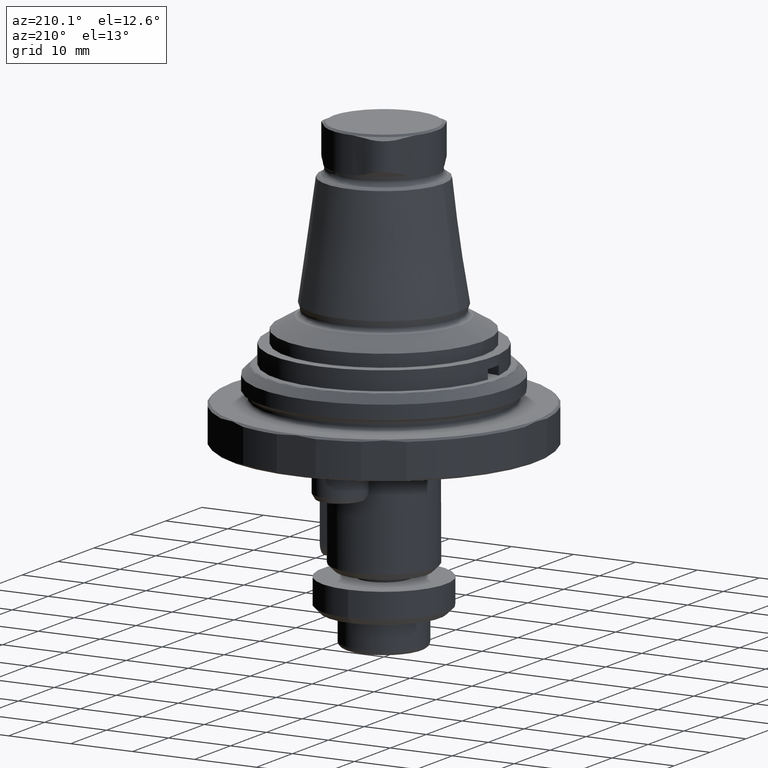
[diagram: clean part render]
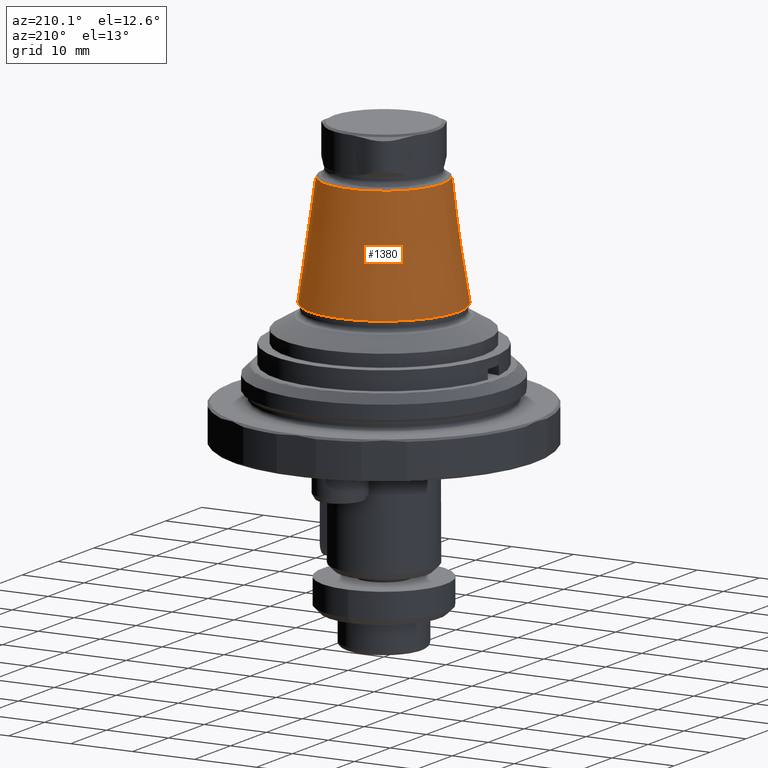
[diagram: same view with one face highlighted and labeled with its STEP entity id]
A machine part, auxiliary view. The second image highlights one B-rep face of the part: STEP entity #1380.
In plain terms, the highlighted conical surface has half-angle 7.95 deg.
Its self-contained STEP definition (entity closure, byte-faithful):
#226=CONICAL_SURFACE('',#1532,12.0389042028962,0.138753675533549);
#411=ORIENTED_EDGE('',*,*,#688,.T.);
#412=ORIENTED_EDGE('',*,*,#689,.F.);
#688=EDGE_CURVE('',#847,#847,#956,.T.);
#689=EDGE_CURVE('',#848,#848,#957,.T.);
#847=VERTEX_POINT('',#2342);
#848=VERTEX_POINT('',#2345);
#956=CIRCLE('',#1531,9.52044245468562);
#957=CIRCLE('',#1533,12.0389042028962);
#1078=EDGE_LOOP('',(#411));
#1079=EDGE_LOOP('',(#412));
#1224=FACE_BOUND('',#1078,.T.);
#1225=FACE_BOUND('',#1079,.T.);
#1380=ADVANCED_FACE('',(#1224,#1225),#226,.T.);
#1531=AXIS2_PLACEMENT_3D('',#2341,#1828,#1829);
#1532=AXIS2_PLACEMENT_3D('',#2343,#1830,#1831);
#1533=AXIS2_PLACEMENT_3D('',#2344,#1832,#1833);
#1828=DIRECTION('',(-5.55111512312578E-17,0.,-1.));
#1829=DIRECTION('',(-1.,6.12303176911189E-17,5.55111512312578E-17));
#1830=DIRECTION('',(-5.55111512312578E-17,0.,-1.));
#1831=DIRECTION('',(-1.,6.12303176911189E-17,5.55111512312578E-17));
#1832=DIRECTION('',(-5.55111512312578E-17,0.,-1.));
#1833=DIRECTION('',(-1.,6.12303176911189E-17,5.55111512312578E-17));
#2341=CARTESIAN_POINT('',(1.17704603612858E-15,0.,31.2037763588263));
#2342=CARTESIAN_POINT('',(-9.52044245468562,5.82939716060416E-16,31.2037763588263));
#2343=CARTESIAN_POINT('',(1.75959981730679E-16,0.,13.1698132326176));
#2344=CARTESIAN_POINT('',(1.75959981730679E-16,0.,13.1698132326176));
#2345=CARTESIAN_POINT('',(-12.0389042028962,7.37145928996282E-16,13.1698132326176));